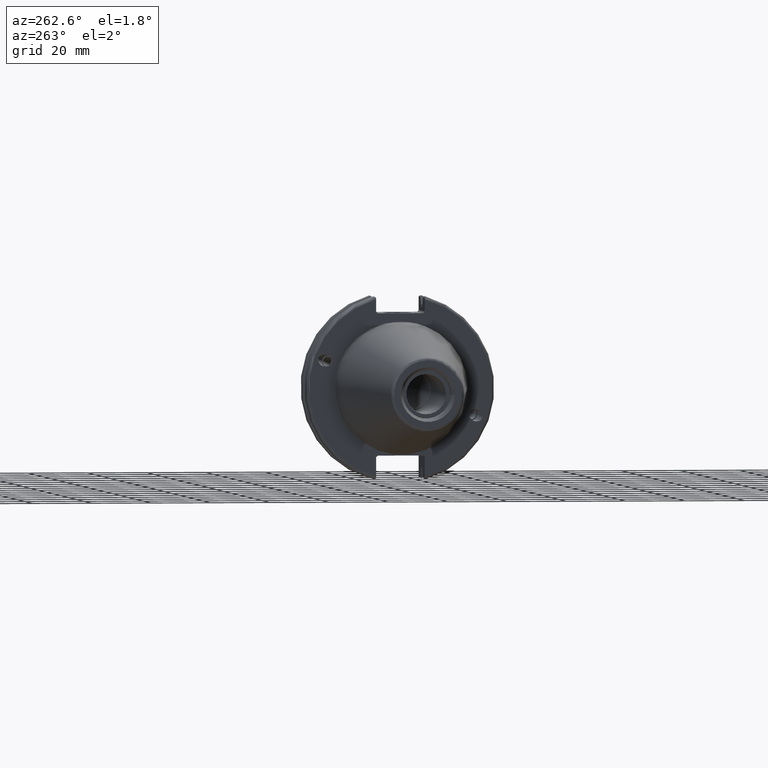
[diagram: clean part render]
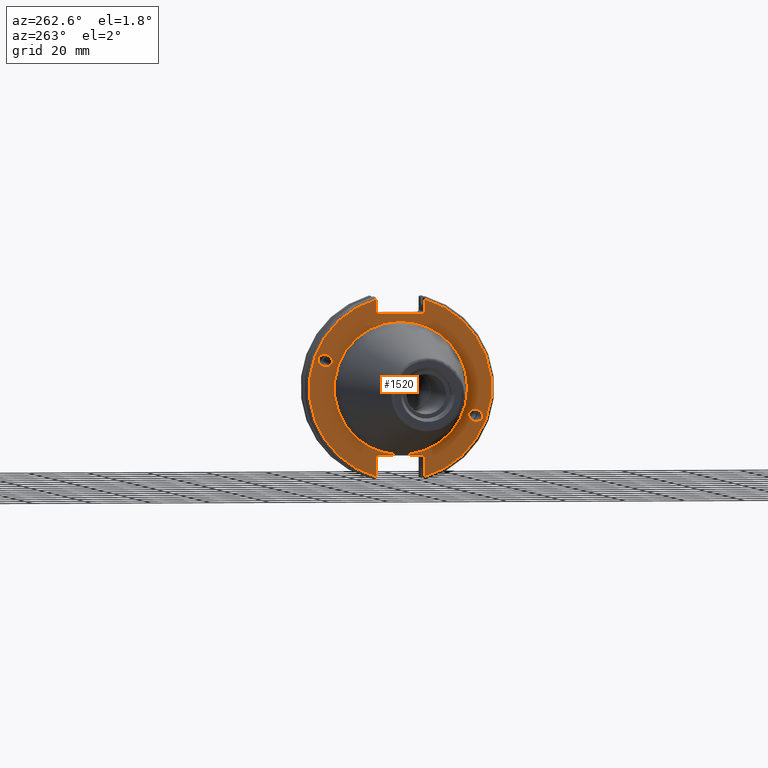
[diagram: same view with one face highlighted and labeled with its STEP entity id]
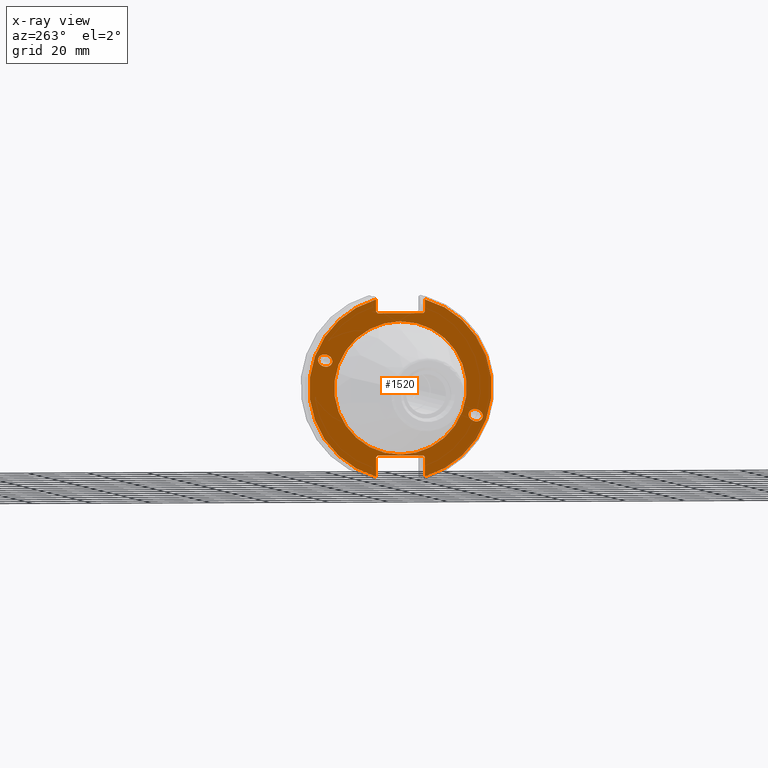
[diagram: x-ray of the same camera — body ghosted, the highlighted face saturated]
A machine part, auxiliary view. The second image highlights one B-rep face of the part: STEP entity #1520.
The next image is the same camera in x-ray: the body ghosted, the highlighted face saturated — about 0% of this face is hidden behind the body in this view.
In plain terms, the highlighted planar face has unit normal (-1, 0, 0).
Its self-contained STEP definition (entity closure, byte-faithful):
#39=ELLIPSE('',#1643,2.44154917752292,2.00000000000001);
#48=ELLIPSE('',#1686,2.44154917752292,2.00000000000001);
#118=FACE_BOUND('',#502,.T.);
#119=FACE_BOUND('',#503,.T.);
#120=FACE_BOUND('',#504,.T.);
#136=PLANE('',#1696);
#208=LINE('',#2692,#302);
#209=LINE('',#2694,#303);
#210=LINE('',#2696,#304);
#211=LINE('',#2698,#305);
#212=LINE('',#2700,#306);
#213=LINE('',#2704,#307);
#214=LINE('',#2706,#308);
#215=LINE('',#2708,#309);
#216=LINE('',#2710,#310);
#217=LINE('',#2711,#311);
#302=VECTOR('',#2035,10.);
#303=VECTOR('',#2036,10.);
#304=VECTOR('',#2037,10.);
#305=VECTOR('',#2038,10.);
#306=VECTOR('',#2039,10.);
#307=VECTOR('',#2042,10.);
#308=VECTOR('',#2043,10.);
#309=VECTOR('',#2044,10.);
#310=VECTOR('',#2045,10.);
#311=VECTOR('',#2046,10.);
#404=FACE_OUTER_BOUND('',#501,.T.);
#501=EDGE_LOOP('',(#1231,#1232,#1233,#1234,#1235,#1236,#1237,#1238,#1239,
#1240,#1241,#1242));
#502=EDGE_LOOP('',(#1243));
#503=EDGE_LOOP('',(#1244));
#504=EDGE_LOOP('',(#1245));
#598=CIRCLE('',#1694,22.3);
#600=CIRCLE('',#1697,30.75);
#601=CIRCLE('',#1698,30.75);
#678=VERTEX_POINT('',#2485);
#718=VERTEX_POINT('',#2668);
#723=VERTEX_POINT('',#2683);
#724=VERTEX_POINT('',#2688);
#725=VERTEX_POINT('',#2689);
#726=VERTEX_POINT('',#2691);
#727=VERTEX_POINT('',#2693);
#728=VERTEX_POINT('',#2695);
#729=VERTEX_POINT('',#2697);
#730=VERTEX_POINT('',#2699);
#731=VERTEX_POINT('',#2701);
#732=VERTEX_POINT('',#2703);
#733=VERTEX_POINT('',#2705);
#734=VERTEX_POINT('',#2707);
#735=VERTEX_POINT('',#2709);
#847=EDGE_CURVE('',#678,#678,#39,.T.);
#903=EDGE_CURVE('',#718,#718,#48,.T.);
#910=EDGE_CURVE('',#723,#723,#598,.T.);
#912=EDGE_CURVE('',#724,#725,#600,.T.);
#913=EDGE_CURVE('',#724,#726,#208,.T.);
#914=EDGE_CURVE('',#727,#726,#209,.T.);
#915=EDGE_CURVE('',#727,#728,#210,.T.);
#916=EDGE_CURVE('',#729,#728,#211,.T.);
#917=EDGE_CURVE('',#729,#730,#212,.T.);
#918=EDGE_CURVE('',#731,#730,#601,.T.);
#919=EDGE_CURVE('',#731,#732,#213,.T.);
#920=EDGE_CURVE('',#733,#732,#214,.T.);
#921=EDGE_CURVE('',#733,#734,#215,.T.);
#922=EDGE_CURVE('',#735,#734,#216,.T.);
#923=EDGE_CURVE('',#735,#725,#217,.T.);
#1231=ORIENTED_EDGE('',*,*,#912,.F.);
#1232=ORIENTED_EDGE('',*,*,#913,.T.);
#1233=ORIENTED_EDGE('',*,*,#914,.F.);
#1234=ORIENTED_EDGE('',*,*,#915,.T.);
#1235=ORIENTED_EDGE('',*,*,#916,.F.);
#1236=ORIENTED_EDGE('',*,*,#917,.T.);
#1237=ORIENTED_EDGE('',*,*,#918,.F.);
#1238=ORIENTED_EDGE('',*,*,#919,.T.);
#1239=ORIENTED_EDGE('',*,*,#920,.F.);
#1240=ORIENTED_EDGE('',*,*,#921,.T.);
#1241=ORIENTED_EDGE('',*,*,#922,.F.);
#1242=ORIENTED_EDGE('',*,*,#923,.T.);
#1243=ORIENTED_EDGE('',*,*,#847,.T.);
#1244=ORIENTED_EDGE('',*,*,#903,.T.);
#1245=ORIENTED_EDGE('',*,*,#910,.F.);
#1520=ADVANCED_FACE('',(#404,#118,#119,#120),#136,.T.);
#1643=AXIS2_PLACEMENT_3D('',#2487,#1906,#1907);
#1686=AXIS2_PLACEMENT_3D('',#2670,#2009,#2010);
#1694=AXIS2_PLACEMENT_3D('',#2685,#2027,#2028);
#1696=AXIS2_PLACEMENT_3D('',#2687,#2031,#2032);
#1697=AXIS2_PLACEMENT_3D('',#2690,#2033,#2034);
#1698=AXIS2_PLACEMENT_3D('',#2702,#2040,#2041);
#1906=DIRECTION('center_axis',(1.,0.,0.));
#1907=DIRECTION('ref_axis',(5.68400912649E-17,-0.939692620785909,-0.342020143325667));
#2009=DIRECTION('center_axis',(1.,0.,0.));
#2010=DIRECTION('ref_axis',(5.68400912649E-17,0.939692620785909,0.342020143325667));
#2027=DIRECTION('center_axis',(-1.,0.,0.));
#2028=DIRECTION('ref_axis',(0.,-1.,1.83697019872103E-16));
#2031=DIRECTION('center_axis',(-1.,0.,0.));
#2032=DIRECTION('ref_axis',(0.,0.,1.));
#2033=DIRECTION('center_axis',(1.,0.,0.));
#2034=DIRECTION('ref_axis',(0.,-1.,1.60812264967664E-16));
#2035=DIRECTION('',(0.,0.,-1.));
#2036=DIRECTION('',(0.,-0.70710678118655,0.707106781186545));
#2037=DIRECTION('',(0.,1.,0.));
#2038=DIRECTION('',(0.,-0.707106781186549,-0.707106781186546));
#2039=DIRECTION('',(0.,0.,1.));
#2040=DIRECTION('center_axis',(1.,0.,0.));
#2041=DIRECTION('ref_axis',(0.,1.,1.60812264967664E-16));
#2042=DIRECTION('',(0.,0.,1.));
#2043=DIRECTION('',(0.,0.707106781186549,-0.707106781186546));
#2044=DIRECTION('',(0.,-1.,0.));
#2045=DIRECTION('',(0.,0.707106781186549,0.707106781186546));
#2046=DIRECTION('',(0.,0.,-1.));
#2485=CARTESIAN_POINT('',(3.175,-23.0773950158153,-8.39948487016));
#2487=CARTESIAN_POINT('Origin',(3.175,-25.3717007612195,-9.23454386979305));
#2668=CARTESIAN_POINT('',(3.175,23.0773950158153,8.39948487016));
#2670=CARTESIAN_POINT('Origin',(3.175,25.3717007612195,9.23454386979306));
#2683=CARTESIAN_POINT('',(3.175,-2.7309623620986E-15,22.3));
#2685=CARTESIAN_POINT('Origin',(3.175,0.,0.));
#2687=CARTESIAN_POINT('Origin',(3.175,31.75,0.));
#2688=CARTESIAN_POINT('',(3.175,-8.18999999999999,29.6392712461019));
#2689=CARTESIAN_POINT('',(3.175,-8.19,-29.6392712461019));
#2690=CARTESIAN_POINT('Origin',(3.175,0.,0.));
#2691=CARTESIAN_POINT('',(3.175,-8.18999999999999,25.5));
#2692=CARTESIAN_POINT('',(3.175,-8.18999999999999,12.5));
#2693=CARTESIAN_POINT('',(3.175,-7.68999999999999,25.));
#2694=CARTESIAN_POINT('',(3.175,8.29500000000007,9.01500000000004));
#2695=CARTESIAN_POINT('',(3.175,7.69,25.));
#2696=CARTESIAN_POINT('',(3.175,15.875,25.));
#2697=CARTESIAN_POINT('',(3.175,8.19,25.5));
#2698=CARTESIAN_POINT('',(3.175,7.58000000000002,24.89));
#2699=CARTESIAN_POINT('',(3.175,8.19,29.6392712461019));
#2700=CARTESIAN_POINT('',(3.175,8.19,12.5));
#2701=CARTESIAN_POINT('',(3.175,8.18999999999999,-29.6392712461019));
#2702=CARTESIAN_POINT('Origin',(3.175,0.,0.));
#2703=CARTESIAN_POINT('',(3.175,8.18999999999999,-23.1));
#2704=CARTESIAN_POINT('',(3.175,8.18999999999999,-11.3));
#2705=CARTESIAN_POINT('',(3.175,7.69,-22.6));
#2706=CARTESIAN_POINT('',(3.175,8.18000000000002,-23.09));
#2707=CARTESIAN_POINT('',(3.175,-7.69,-22.6));
#2708=CARTESIAN_POINT('',(3.175,15.875,-22.6));
#2709=CARTESIAN_POINT('',(3.175,-8.19,-23.1));
#2710=CARTESIAN_POINT('',(3.175,7.69500000000004,-7.21500000000002));
#2711=CARTESIAN_POINT('',(3.175,-8.19,-11.3));